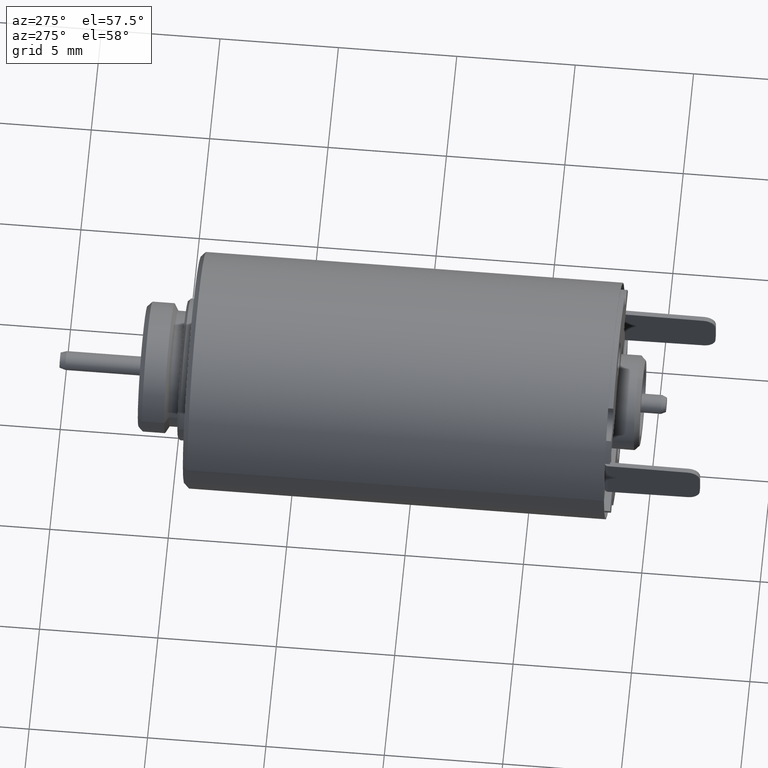
[diagram: clean part render]
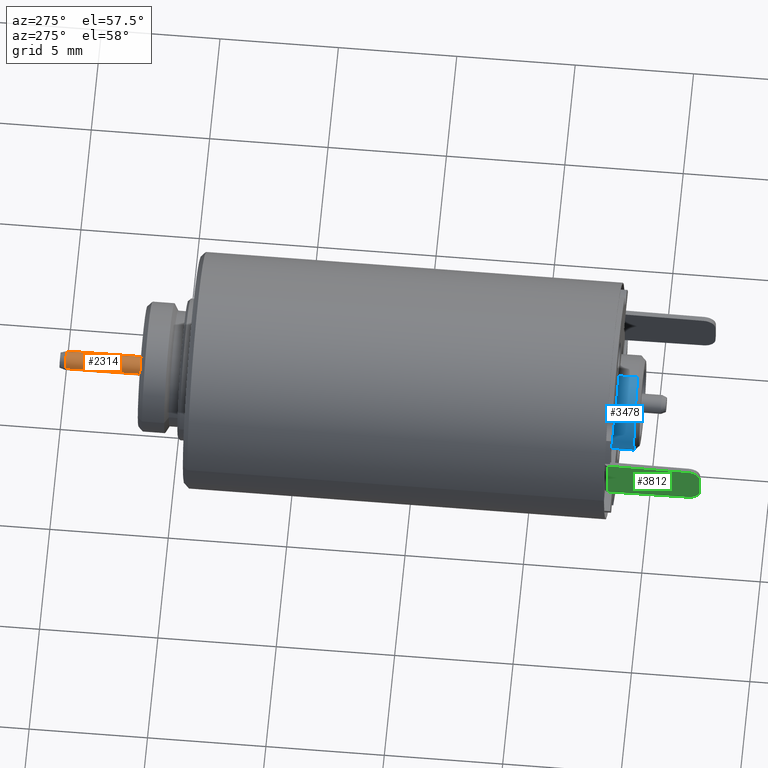
[diagram: same view with three faces highlighted in distinct colors, each labeled with its STEP entity id]
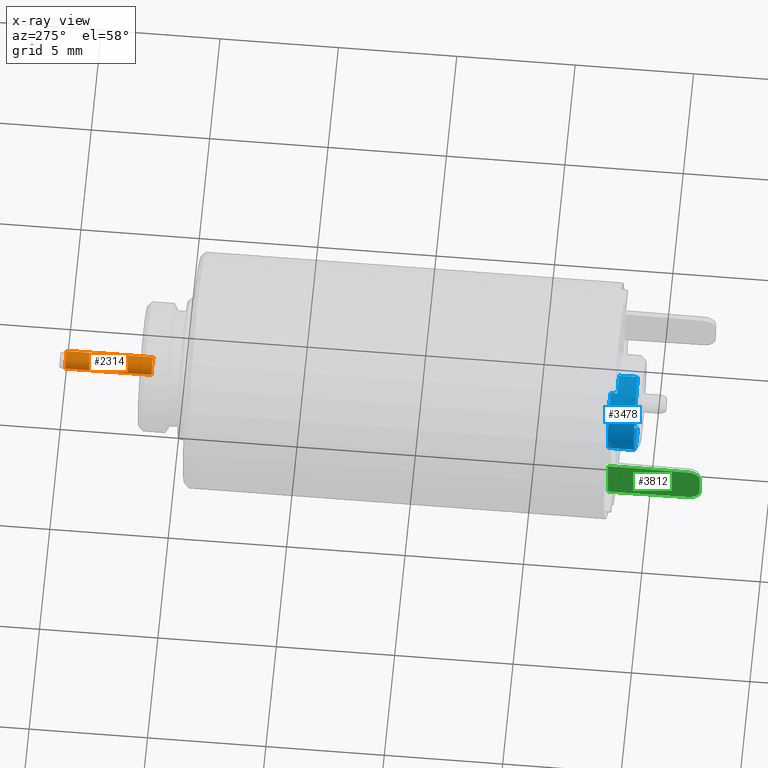
[diagram: x-ray of the same camera — body ghosted, the three highlighted faces saturated]
A machine part, auxiliary view with three faces highlighted in distinct colors.
The next image is the same camera in x-ray (body ghosted, the three faces saturated) — at least one of them is partly hidden behind the body in this view.
Their STEP definitions:

[orange] entity #2314 — the highlighted cylindrical surface (edge-blend (fillet) strip) has radius 0.4 mm, axis along (0, 1, 0).
#19=DIRECTION('',(0.E0,-1.E0,0.E0));
#20=VECTOR('',#19,3.65E0);
#21=CARTESIAN_POINT('',(-4.E-1,-2.5E-1,0.E0));
#22=LINE('',#21,#20);
#23=DIRECTION('',(0.E0,-1.E0,0.E0));
#24=VECTOR('',#23,3.65E0);
#25=CARTESIAN_POINT('',(4.E-1,-2.5E-1,0.E0));
#26=LINE('',#25,#24);
#32=CARTESIAN_POINT('',(0.E0,-2.5E-1,0.E0));
#33=DIRECTION('',(0.E0,1.E0,0.E0));
#34=DIRECTION('',(-1.E0,0.E0,0.E0));
#35=AXIS2_PLACEMENT_3D('',#32,#33,#34);
#42=CARTESIAN_POINT('',(0.E0,-3.9E0,0.E0));
#43=DIRECTION('',(0.E0,1.E0,0.E0));
#44=DIRECTION('',(-1.E0,0.E0,0.E0));
#45=AXIS2_PLACEMENT_3D('',#42,#43,#44);
#1825=CARTESIAN_POINT('',(-4.E-1,-2.5E-1,0.E0));
#1826=CARTESIAN_POINT('',(-4.E-1,-3.9E0,0.E0));
#1827=VERTEX_POINT('',#1825);
#1828=VERTEX_POINT('',#1826);
#1833=CARTESIAN_POINT('',(4.E-1,-2.5E-1,0.E0));
#1834=CARTESIAN_POINT('',(4.E-1,-3.9E0,0.E0));
#1835=VERTEX_POINT('',#1833);
#1836=VERTEX_POINT('',#1834);
#2302=CARTESIAN_POINT('',(0.E0,-2.688E1,0.E0));
#2303=DIRECTION('',(0.E0,1.E0,0.E0));
#2304=DIRECTION('',(1.E0,0.E0,0.E0));
#2305=AXIS2_PLACEMENT_3D('',#2302,#2303,#2304);
#2306=CYLINDRICAL_SURFACE('',#2305,4.E-1);
#2307=ORIENTED_EDGE('',*,*,#2292,.F.);
#2308=ORIENTED_EDGE('',*,*,#2269,.T.);
#2309=ORIENTED_EDGE('',*,*,#2296,.T.);
#2311=ORIENTED_EDGE('',*,*,#2310,.F.);
#2312=EDGE_LOOP('',(#2307,#2308,#2309,#2311));
#2313=FACE_OUTER_BOUND('',#2312,.F.);
#2314=ADVANCED_FACE('',(#2313),#2306,.T.);
#36=CIRCLE('',#35,4.E-1);
#46=CIRCLE('',#45,4.E-1);
#2269=EDGE_CURVE('',#1827,#1835,#36,.T.);
#2292=EDGE_CURVE('',#1827,#1828,#22,.T.);
#2296=EDGE_CURVE('',#1835,#1836,#26,.T.);
#2310=EDGE_CURVE('',#1828,#1836,#46,.T.);

[blue] entity #3478 — the highlighted cylindrical surface (partial cylindrical patch) has radius 2 mm, axis along (0, 1, 0).
#756=CARTESIAN_POINT('',(0.E0,-2.36E1,0.E0));
#757=DIRECTION('',(0.E0,1.E0,0.E0));
#758=DIRECTION('',(0.E0,0.E0,-1.E0));
#759=AXIS2_PLACEMENT_3D('',#756,#757,#758);
#783=CARTESIAN_POINT('',(0.E0,-2.36E1,0.E0));
#784=DIRECTION('',(0.E0,1.E0,0.E0));
#785=DIRECTION('',(-3.919183588453E-1,0.E0,9.2E-1));
#786=AXIS2_PLACEMENT_3D('',#783,#784,#785);
#874=CARTESIAN_POINT('',(0.E0,-2.33E1,0.E0));
#875=DIRECTION('',(0.E0,1.E0,0.E0));
#876=DIRECTION('',(-3.919183588453E-1,0.E0,-9.2E-1));
#877=AXIS2_PLACEMENT_3D('',#874,#875,#876);
#928=DIRECTION('',(0.E0,1.E0,0.E0));
#929=VECTOR('',#928,3.E-1);
#930=CARTESIAN_POINT('',(-7.838367176906E-1,-2.36E1,1.84E0));
#931=LINE('',#930,#929);
#932=DIRECTION('',(0.E0,1.E0,0.E0));
#933=VECTOR('',#932,3.E-1);
#934=CARTESIAN_POINT('',(-7.838367176906E-1,-2.36E1,-1.84E0));
#935=LINE('',#934,#933);
#936=CARTESIAN_POINT('',(0.E0,-2.44E1,0.E0));
#937=DIRECTION('',(0.E0,1.E0,0.E0));
#938=DIRECTION('',(0.E0,0.E0,-1.E0));
#939=AXIS2_PLACEMENT_3D('',#936,#937,#938);
#945=DIRECTION('',(0.E0,1.E0,0.E0));
#946=VECTOR('',#945,8.E-1);
#947=CARTESIAN_POINT('',(0.E0,-2.44E1,-2.E0));
#948=LINE('',#947,#946);
#954=DIRECTION('',(0.E0,1.E0,0.E0));
#955=VECTOR('',#954,8.E-1);
#956=CARTESIAN_POINT('',(0.E0,-2.44E1,2.E0));
#957=LINE('',#956,#955);
#1858=CARTESIAN_POINT('',(0.E0,-2.44E1,-2.E0));
#1860=VERTEX_POINT('',#1858);
#1861=CARTESIAN_POINT('',(0.E0,-2.36E1,-2.E0));
#1862=VERTEX_POINT('',#1861);
#1868=CARTESIAN_POINT('',(0.E0,-2.44E1,2.E0));
#1870=VERTEX_POINT('',#1868);
#1871=CARTESIAN_POINT('',(0.E0,-2.36E1,2.E0));
#1872=VERTEX_POINT('',#1871);
#1989=CARTESIAN_POINT('',(-7.838367176906E-1,-2.33E1,-1.84E0));
#1990=CARTESIAN_POINT('',(-7.838367176906E-1,-2.33E1,1.84E0));
#1991=VERTEX_POINT('',#1989);
#1992=VERTEX_POINT('',#1990);
#1994=CARTESIAN_POINT('',(-7.838367176906E-1,-2.36E1,-1.84E0));
#1996=VERTEX_POINT('',#1994);
#1997=CARTESIAN_POINT('',(-7.838367176906E-1,-2.36E1,1.84E0));
#1999=VERTEX_POINT('',#1997);
#3460=CARTESIAN_POINT('',(0.E0,-2.4825E1,0.E0));
#3461=DIRECTION('',(0.E0,1.E0,0.E0));
#3462=DIRECTION('',(0.E0,0.E0,-1.E0));
#3463=AXIS2_PLACEMENT_3D('',#3460,#3461,#3462);
#3464=CYLINDRICAL_SURFACE('',#3463,2.E0);
#3465=ORIENTED_EDGE('',*,*,#3193,.T.);
#3466=ORIENTED_EDGE('',*,*,#3393,.T.);
#3467=ORIENTED_EDGE('',*,*,#3406,.T.);
#3468=ORIENTED_EDGE('',*,*,#3453,.F.);
#3469=ORIENTED_EDGE('',*,*,#3241,.T.);
#3471=ORIENTED_EDGE('',*,*,#3470,.F.);
#3473=ORIENTED_EDGE('',*,*,#3472,.F.);
#3475=ORIENTED_EDGE('',*,*,#3474,.T.);
#3476=EDGE_LOOP('',(#3465,#3466,#3467,#3468,#3469,#3471,#3473,#3475));
#3477=FACE_OUTER_BOUND('',#3476,.F.);
#3478=ADVANCED_FACE('',(#3477),#3464,.T.);
#760=CIRCLE('',#759,2.E0);
#787=CIRCLE('',#786,2.E0);
#878=CIRCLE('',#877,2.E0);
#940=CIRCLE('',#939,2.E0);
#3193=EDGE_CURVE('',#1862,#1996,#760,.T.);
#3241=EDGE_CURVE('',#1999,#1872,#787,.T.);
#3393=EDGE_CURVE('',#1996,#1991,#935,.T.);
#3406=EDGE_CURVE('',#1991,#1992,#878,.T.);
#3453=EDGE_CURVE('',#1999,#1992,#931,.T.);
#3470=EDGE_CURVE('',#1870,#1872,#957,.T.);
#3472=EDGE_CURVE('',#1860,#1870,#940,.T.);
#3474=EDGE_CURVE('',#1860,#1862,#948,.T.);

[green] entity #3812 — the highlighted planar face has unit normal (-1, 0, 0).
#1088=DIRECTION('',(0.E0,-1.E0,0.E0));
#1089=VECTOR('',#1088,5.E-2);
#1090=CARTESIAN_POINT('',(-3.9E0,-2.347E1,-1.E0));
#1091=LINE('',#1090,#1089);
#1092=CARTESIAN_POINT('',(-3.9E0,-2.352E1,-1.E0));
#1170=CARTESIAN_POINT('',(-3.9E0,-2.685E1,-4.564848098104E-1));
#1171=DIRECTION('',(-1.E0,0.E0,0.E0));
#1172=DIRECTION('',(0.E0,-1.305371797120E-2,-9.999147965938E-1));
#1173=AXIS2_PLACEMENT_3D('',#1170,#1171,#1172);
#1175=DIRECTION('',(0.E0,9.999147965938E-1,-1.305371797120E-2));
#1176=VECTOR('',#1175,3.336811166663E0);
#1177=CARTESIAN_POINT('',(-3.9E0,-2.685652685899E1,-9.564422081072E-1));
#1178=LINE('',#1177,#1176);
#1179=DIRECTION('',(0.E0,0.E0,1.E0));
#1180=VECTOR('',#1179,2.E0);
#1181=CARTESIAN_POINT('',(-3.9E0,-2.347E1,-1.E0));
#1182=LINE('',#1181,#1180);
#1183=DIRECTION('',(0.E0,-9.999147965938E-1,-1.305371797120E-2));
#1184=VECTOR('',#1183,3.336811166663E0);
#1185=CARTESIAN_POINT('',(-3.9E0,-2.352E1,1.E0));
#1186=LINE('',#1185,#1184);
#1187=CARTESIAN_POINT('',(-3.9E0,-2.685E1,4.564848098104E-1));
#1188=DIRECTION('',(-1.E0,0.E0,0.E0));
#1189=DIRECTION('',(0.E0,-1.E0,-1.365574320289E-14));
#1190=AXIS2_PLACEMENT_3D('',#1187,#1188,#1189);
#1200=CARTESIAN_POINT('',(-3.9E0,-2.352E1,1.E0));
#1205=DIRECTION('',(0.E0,-1.E0,0.E0));
#1206=VECTOR('',#1205,5.E-2);
#1207=CARTESIAN_POINT('',(-3.9E0,-2.347E1,1.E0));
#1208=LINE('',#1207,#1206);
#1294=DIRECTION('',(0.E0,0.E0,1.E0));
#1295=VECTOR('',#1294,9.129696196207E-1);
#1296=CARTESIAN_POINT('',(-3.9E0,-2.735E1,-4.564848098104E-1));
#1297=LINE('',#1296,#1295);
#2025=CARTESIAN_POINT('',(-3.9E0,-2.347E1,-1.E0));
#2026=VERTEX_POINT('',#2025);
#2037=CARTESIAN_POINT('',(-3.9E0,-2.347E1,1.E0));
#2038=VERTEX_POINT('',#2037);
#2085=VERTEX_POINT('',#1092);
#2087=VERTEX_POINT('',#1200);
#2097=CARTESIAN_POINT('',(-3.9E0,-2.685652685899E1,-9.564422081072E-1));
#2098=VERTEX_POINT('',#2097);
#2099=CARTESIAN_POINT('',(-3.9E0,-2.735E1,-4.564848098104E-1));
#2100=VERTEX_POINT('',#2099);
#2101=CARTESIAN_POINT('',(-3.9E0,-2.735E1,4.564848098104E-1));
#2102=CARTESIAN_POINT('',(-3.9E0,-2.685652685899E1,9.564422081072E-1));
#2103=VERTEX_POINT('',#2101);
#2104=VERTEX_POINT('',#2102);
#3792=CARTESIAN_POINT('',(-3.9E0,-2.347E1,-1.E0));
#3793=DIRECTION('',(-1.E0,0.E0,0.E0));
#3794=DIRECTION('',(0.E0,-1.E0,0.E0));
#3795=AXIS2_PLACEMENT_3D('',#3792,#3793,#3794);
#3796=PLANE('',#3795);
#3797=ORIENTED_EDGE('',*,*,#3772,.F.);
#3798=ORIENTED_EDGE('',*,*,#3787,.T.);
#3799=ORIENTED_EDGE('',*,*,#3696,.F.);
#3801=ORIENTED_EDGE('',*,*,#3800,.T.);
#3803=ORIENTED_EDGE('',*,*,#3802,.T.);
#3805=ORIENTED_EDGE('',*,*,#3804,.T.);
#3807=ORIENTED_EDGE('',*,*,#3806,.F.);
#3809=ORIENTED_EDGE('',*,*,#3808,.F.);
#3810=EDGE_LOOP('',(#3797,#3798,#3799,#3801,#3803,#3805,#3807,#3809));
#3811=FACE_OUTER_BOUND('',#3810,.F.);
#3812=ADVANCED_FACE('',(#3811),#3796,.T.);
#1174=CIRCLE('',#1173,5.E-1);
#1191=CIRCLE('',#1190,5.E-1);
#3696=EDGE_CURVE('',#2026,#2085,#1091,.T.);
#3772=EDGE_CURVE('',#2098,#2100,#1174,.T.);
#3787=EDGE_CURVE('',#2098,#2085,#1178,.T.);
#3800=EDGE_CURVE('',#2026,#2038,#1182,.T.);
#3802=EDGE_CURVE('',#2038,#2087,#1208,.T.);
#3804=EDGE_CURVE('',#2087,#2104,#1186,.T.);
#3806=EDGE_CURVE('',#2103,#2104,#1191,.T.);
#3808=EDGE_CURVE('',#2100,#2103,#1297,.T.);